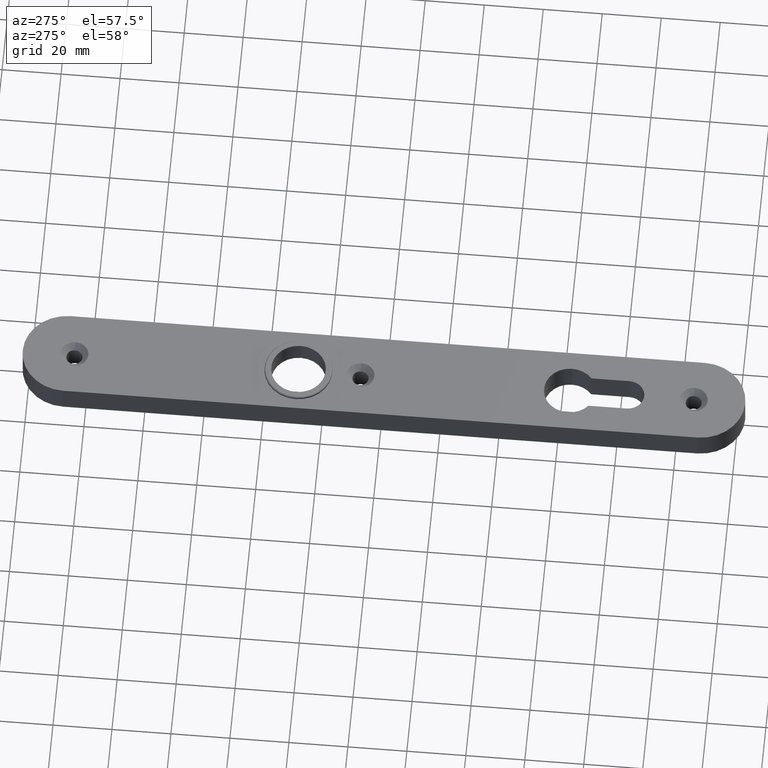
[diagram: clean part render]
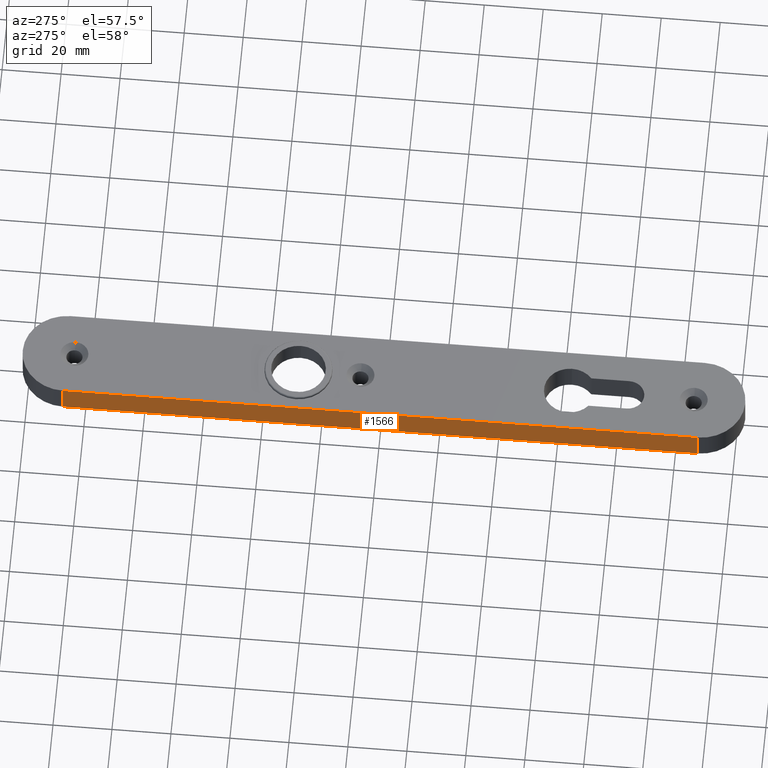
[diagram: same view with one face highlighted and labeled with its STEP entity id]
A machine part, auxiliary view. The second image highlights one B-rep face of the part: STEP entity #1566.
In plain terms, the highlighted planar face has unit normal (1, 0, 0).
Its self-contained STEP definition (entity closure, byte-faithful):
#225 = DIRECTION ( 'NONE',  ( 1.000000000000000000, 0.000000000000000000, -0.000000000000000000 ) ) ;
#956 = CARTESIAN_POINT ( 'NONE',  ( -15.00000000000002487, 122.5000000000000000, 10.00000000000000000 ) ) ;
#1108 = AXIS2_PLACEMENT_3D ( 'NONE', #2833, #225, #9886 ) ;
#1566 = ADVANCED_FACE ( 'NONE', ( #9579 ), #8300, .F. ) ;
#1730 = CARTESIAN_POINT ( 'NONE',  ( -15.00000000000002487, 107.5000000000000000, 0.000000000000000000 ) ) ;
#2709 = VECTOR ( 'NONE', #8053, 1000.000000000000000 ) ;
#2833 = CARTESIAN_POINT ( 'NONE',  ( -15.00000000000002487, 122.5000000000000000, 10.00000000000000000 ) ) ;
#3135 = LINE ( 'NONE', #10844, #3717 ) ;
#3568 = DIRECTION ( 'NONE',  ( -0.000000000000000000, -0.000000000000000000, 1.000000000000000000 ) ) ;
#3647 = ORIENTED_EDGE ( 'NONE', *, *, #6039, .T. ) ;
#3717 = VECTOR ( 'NONE', #5542, 1000.000000000000000 ) ;
#4186 = CARTESIAN_POINT ( 'NONE',  ( -15.00000000000002487, -107.4999999999999858, 10.00000000000000000 ) ) ;
#4341 = ORIENTED_EDGE ( 'NONE', *, *, #7147, .T. ) ;
#4652 = VECTOR ( 'NONE', #7200, 1000.000000000000000 ) ;
#4990 = VERTEX_POINT ( 'NONE', #7129 ) ;
#5132 = ORIENTED_EDGE ( 'NONE', *, *, #7123, .F. ) ;
#5133 = VERTEX_POINT ( 'NONE', #4186 ) ;
#5173 = EDGE_LOOP ( 'NONE', ( #5175, #3647, #5132, #4341 ) ) ;
#5175 = ORIENTED_EDGE ( 'NONE', *, *, #5454, .T. ) ;
#5217 = VERTEX_POINT ( 'NONE', #10383 ) ;
#5454 = EDGE_CURVE ( 'NONE', #7672, #4990, #3135, .T. ) ;
#5542 = DIRECTION ( 'NONE',  ( 0.000000000000000000, -1.000000000000000000, 0.000000000000000000 ) ) ;
#6039 = EDGE_CURVE ( 'NONE', #4990, #5133, #8148, .T. ) ;
#6464 = LINE ( 'NONE', #9728, #4652 ) ;
#7123 = EDGE_CURVE ( 'NONE', #5217, #5133, #11291, .T. ) ;
#7129 = CARTESIAN_POINT ( 'NONE',  ( -15.00000000000002487, -107.4999999999999858, 0.000000000000000000 ) ) ;
#7147 = EDGE_CURVE ( 'NONE', #5217, #7672, #6464, .T. ) ;
#7200 = DIRECTION ( 'NONE',  ( 0.000000000000000000, 0.000000000000000000, -1.000000000000000000 ) ) ;
#7672 = VERTEX_POINT ( 'NONE', #1730 ) ;
#8053 = DIRECTION ( 'NONE',  ( 0.000000000000000000, -1.000000000000000000, 0.000000000000000000 ) ) ;
#8148 = LINE ( 'NONE', #9766, #10209 ) ;
#8300 = PLANE ( 'NONE',  #1108 ) ;
#9579 = FACE_OUTER_BOUND ( 'NONE', #5173, .T. ) ;
#9728 = CARTESIAN_POINT ( 'NONE',  ( -15.00000000000002487, 107.5000000000000000, 10.00000000000000000 ) ) ;
#9766 = CARTESIAN_POINT ( 'NONE',  ( -15.00000000000002487, -107.4999999999999858, 10.00000000000000000 ) ) ;
#9886 = DIRECTION ( 'NONE',  ( -0.000000000000000000, 0.000000000000000000, -1.000000000000000000 ) ) ;
#10209 = VECTOR ( 'NONE', #3568, 1000.000000000000000 ) ;
#10383 = CARTESIAN_POINT ( 'NONE',  ( -15.00000000000002487, 107.5000000000000000, 10.00000000000000000 ) ) ;
#10844 = CARTESIAN_POINT ( 'NONE',  ( -15.00000000000002487, 122.5000000000000000, 0.000000000000000000 ) ) ;
#11291 = LINE ( 'NONE', #956, #2709 ) ;